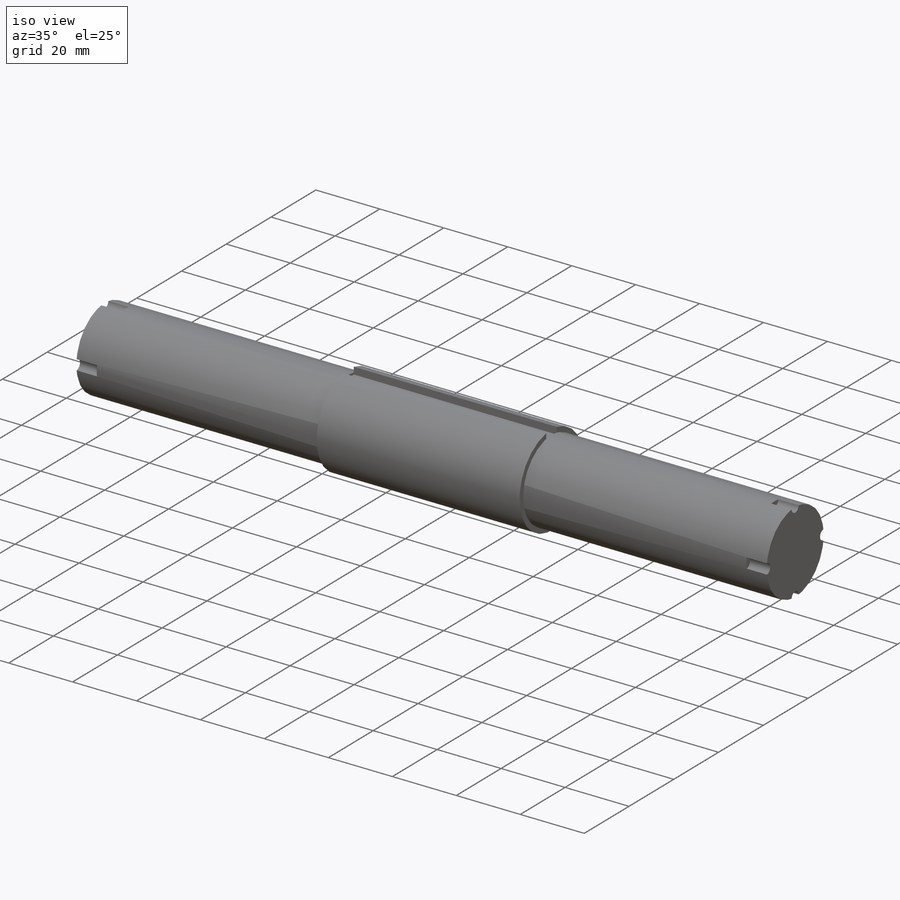
[diagram: iso view]
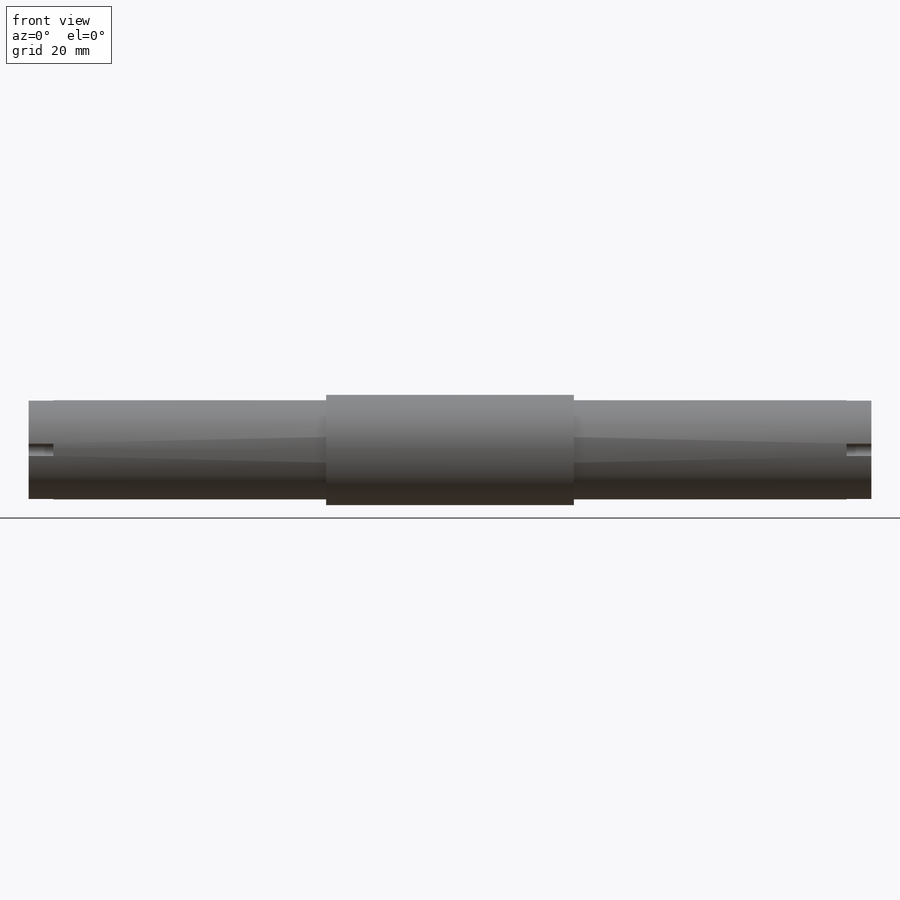
[diagram: front view]
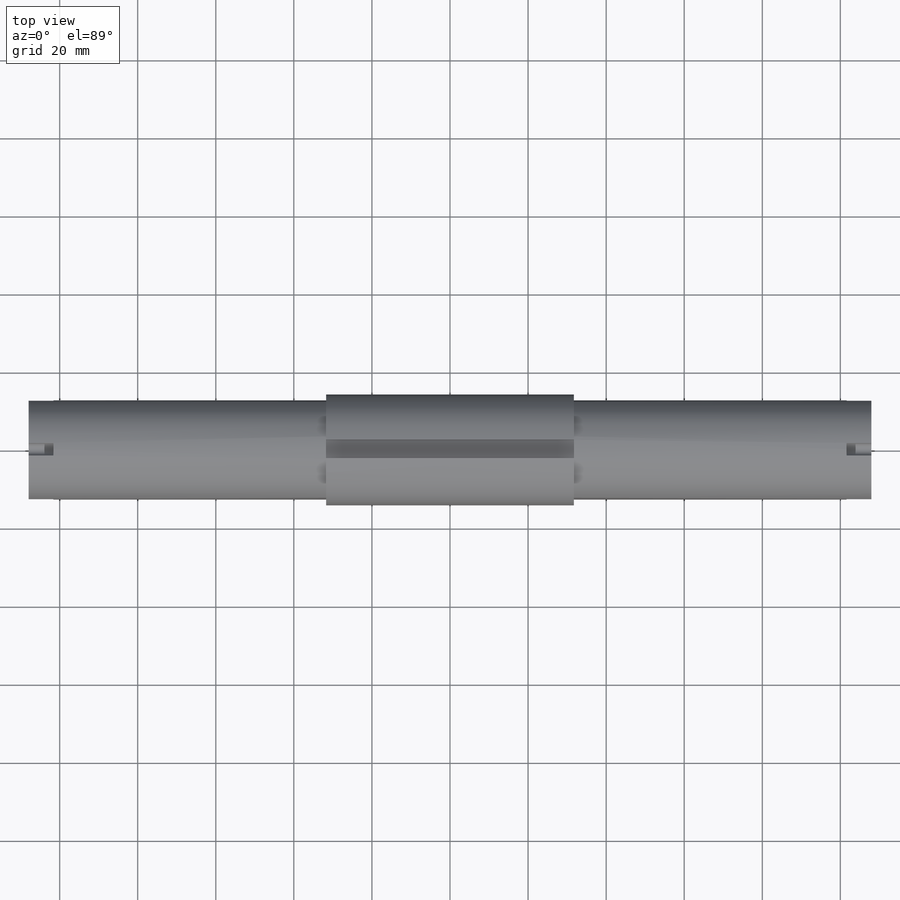
[diagram: top view]
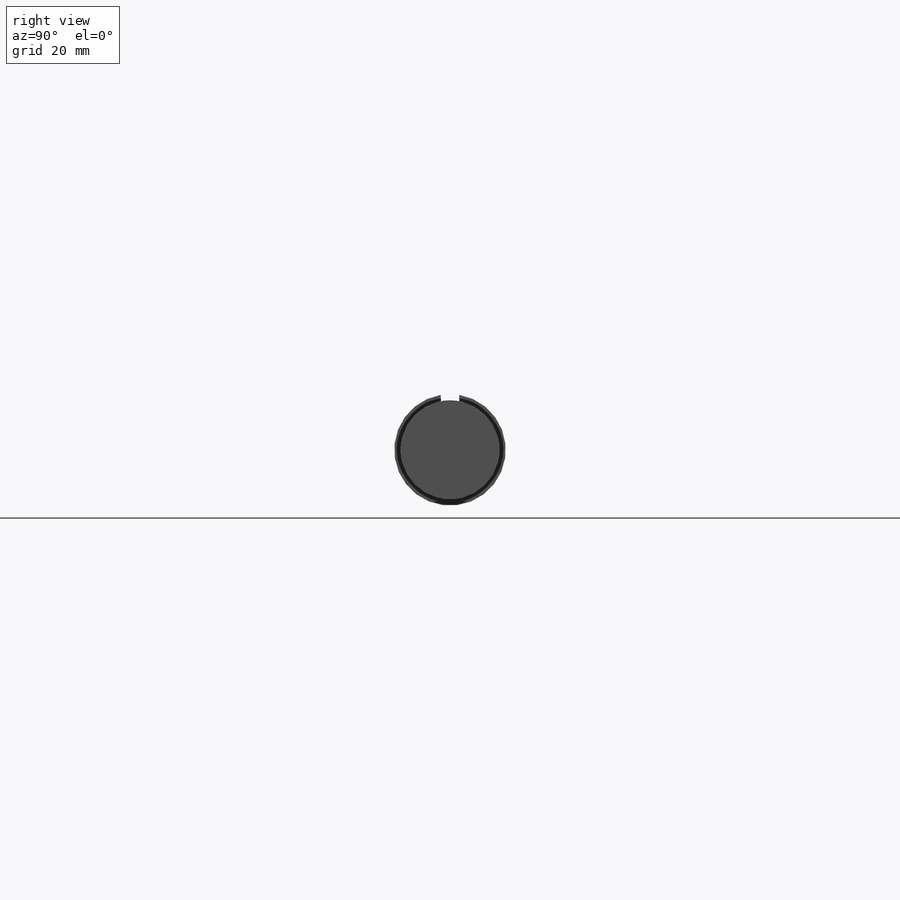
[diagram: right view]
SOLIDWORKS PART (.sldprt)
format: sldprt  version: not decoded by parser v0  size: 213,504 bytes
history: native  units: mm
features: sketch x5, extrude x3, cut_extrude x2, material x1, pattern_circular x1, mirror x1 (+11 scaffold rows collapsed)
feature tree (24):
  scaffold x11  (default folders/planes/origin — collapsed)
  material  "Plain Carbon Steel"
  sketch  "Sketch1"  dims[D1=28.575mm]
  extrude  "Boss-Extrude1"  Depth=63.5mm
  sketch  "Sketch2"  dims[D1=~2.38125mm D2=~2.38125mm D3=~2.38125mm]
  cut_extrude  "Cut-Extrude1"  Depth=63.5mm
  sketch  "Sketch3"  dims[D1=25.4mm]
  extrude  "Boss-Extrude2"  Depth=76.2mm
  sketch  "Sketch4"  dims[D1=25.4mm]
  extrude  "Boss-Extrude3"  Depth=76.2mm
  sketch  "Sketch5"  dims[D1=3.175mm]
  cut_extrude  "Cut-Extrude2"  Depth=6.35mm
  pattern_circular  "CirPattern1"  Count=4 Angle=360deg
  mirror  "Mirror1"
decode coverage: 11 of 12 modeling features carry decoded parameters
note: ~ marks probable driven/reference dimensions
note: suppression state not decoded; provenance and decode notes live in map.json
